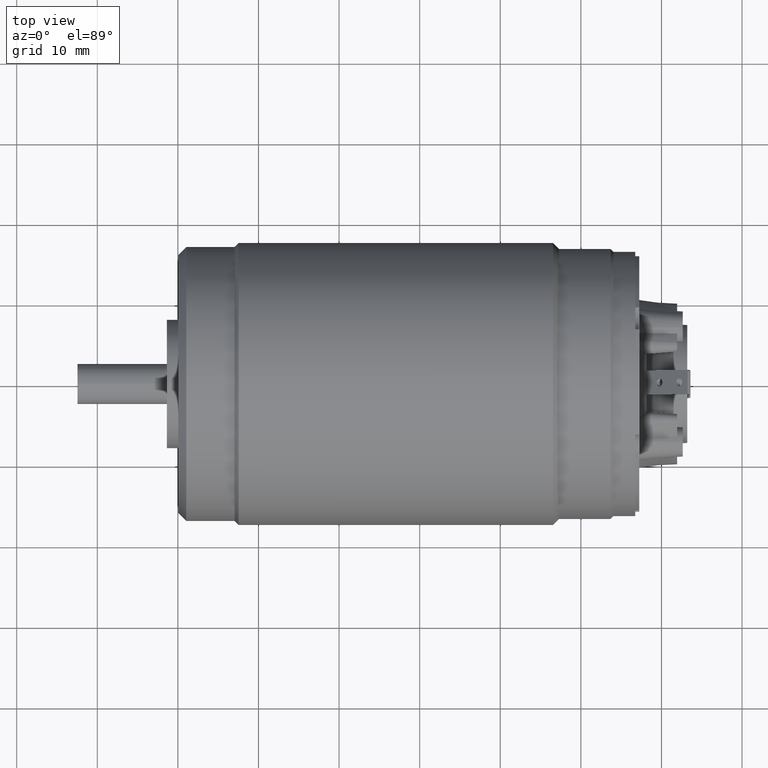
[diagram: clean part render]
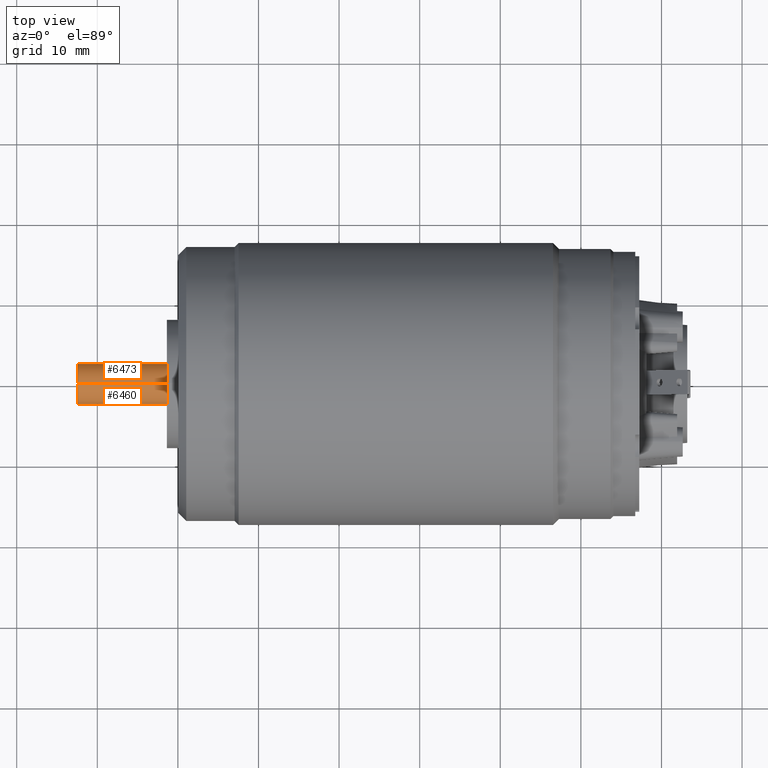
[diagram: same view with one multi-face feature highlighted, each face labeled with its STEP entity id]
A machine part, top view. The highlighted faces form ONE feature: a constant-radius fillet chain: 2 tangent blend faces with common blend radius 2.5 mm. The faces share edges in the B-rep.
Their STEP definitions:
[1] entity #6473 (Cylinder):
#2338=CARTESIAN_POINT('',(-5.136E1,0.E0,0.E0));
#2339=DIRECTION('',(-1.E0,0.E0,0.E0));
#2340=DIRECTION('',(0.E0,0.E0,1.E0));
#2341=AXIS2_PLACEMENT_3D('',#2338,#2339,#2340);
#2348=DIRECTION('',(1.E0,0.E0,0.E0));
#2349=VECTOR('',#2348,1.11E1);
#2350=CARTESIAN_POINT('',(-6.246E1,0.E0,2.5E0));
#2351=LINE('',#2350,#2349);
#2352=CARTESIAN_POINT('',(-6.246E1,0.E0,0.E0));
#2353=DIRECTION('',(-1.E0,0.E0,0.E0));
#2354=DIRECTION('',(0.E0,0.E0,1.E0));
#2355=AXIS2_PLACEMENT_3D('',#2352,#2353,#2354);
#2357=DIRECTION('',(1.E0,0.E0,0.E0));
#2358=VECTOR('',#2357,1.11E1);
#2359=CARTESIAN_POINT('',(-6.246E1,0.E0,-2.5E0));
#2360=LINE('',#2359,#2358);
#3512=CARTESIAN_POINT('',(-6.246E1,0.E0,2.5E0));
#3513=CARTESIAN_POINT('',(-5.136E1,0.E0,2.5E0));
#3514=VERTEX_POINT('',#3512);
#3515=VERTEX_POINT('',#3513);
#3516=CARTESIAN_POINT('',(-6.246E1,0.E0,-2.5E0));
#3517=CARTESIAN_POINT('',(-5.136E1,0.E0,-2.5E0));
#3518=VERTEX_POINT('',#3516);
#3519=VERTEX_POINT('',#3517);
#6461=CARTESIAN_POINT('',(-6.3085E1,0.E0,0.E0));
#6462=DIRECTION('',(1.E0,0.E0,0.E0));
#6463=DIRECTION('',(0.E0,0.E0,1.E0));
#6464=AXIS2_PLACEMENT_3D('',#6461,#6462,#6463);
#6465=CYLINDRICAL_SURFACE('',#6464,2.5E0);
#6466=ORIENTED_EDGE('',*,*,#6451,.F.);
#6468=ORIENTED_EDGE('',*,*,#6467,.T.);
#6469=ORIENTED_EDGE('',*,*,#6454,.T.);
#6470=ORIENTED_EDGE('',*,*,#6441,.F.);
#6471=EDGE_LOOP('',(#6466,#6468,#6469,#6470));
#6472=FACE_OUTER_BOUND('',#6471,.F.);
#6473=ADVANCED_FACE('',(#6472),#6465,.T.);
#2342=CIRCLE('',#2341,2.5E0);
#2356=CIRCLE('',#2355,2.5E0);
#6441=EDGE_CURVE('',#3515,#3519,#2342,.T.);
#6451=EDGE_CURVE('',#3514,#3515,#2351,.T.);
#6454=EDGE_CURVE('',#3518,#3519,#2360,.T.);
#6467=EDGE_CURVE('',#3514,#3518,#2356,.T.);
[2] entity #6460 (Cylinder):
#2333=CARTESIAN_POINT('',(-5.136E1,0.E0,0.E0));
#2334=DIRECTION('',(1.E0,0.E0,0.E0));
#2335=DIRECTION('',(0.E0,0.E0,1.E0));
#2336=AXIS2_PLACEMENT_3D('',#2333,#2334,#2335);
#2343=CARTESIAN_POINT('',(-6.246E1,0.E0,0.E0));
#2344=DIRECTION('',(1.E0,0.E0,0.E0));
#2345=DIRECTION('',(0.E0,0.E0,1.E0));
#2346=AXIS2_PLACEMENT_3D('',#2343,#2344,#2345);
#2348=DIRECTION('',(1.E0,0.E0,0.E0));
#2349=VECTOR('',#2348,1.11E1);
#2350=CARTESIAN_POINT('',(-6.246E1,0.E0,2.5E0));
#2351=LINE('',#2350,#2349);
#2357=DIRECTION('',(1.E0,0.E0,0.E0));
#2358=VECTOR('',#2357,1.11E1);
#2359=CARTESIAN_POINT('',(-6.246E1,0.E0,-2.5E0));
#2360=LINE('',#2359,#2358);
#3512=CARTESIAN_POINT('',(-6.246E1,0.E0,2.5E0));
#3513=CARTESIAN_POINT('',(-5.136E1,0.E0,2.5E0));
#3514=VERTEX_POINT('',#3512);
#3515=VERTEX_POINT('',#3513);
#3516=CARTESIAN_POINT('',(-6.246E1,0.E0,-2.5E0));
#3517=CARTESIAN_POINT('',(-5.136E1,0.E0,-2.5E0));
#3518=VERTEX_POINT('',#3516);
#3519=VERTEX_POINT('',#3517);
#6446=CARTESIAN_POINT('',(-6.3085E1,0.E0,0.E0));
#6447=DIRECTION('',(1.E0,0.E0,0.E0));
#6448=DIRECTION('',(0.E0,0.E0,1.E0));
#6449=AXIS2_PLACEMENT_3D('',#6446,#6447,#6448);
#6450=CYLINDRICAL_SURFACE('',#6449,2.5E0);
#6452=ORIENTED_EDGE('',*,*,#6451,.T.);
#6453=ORIENTED_EDGE('',*,*,#6439,.T.);
#6455=ORIENTED_EDGE('',*,*,#6454,.F.);
#6457=ORIENTED_EDGE('',*,*,#6456,.F.);
#6458=EDGE_LOOP('',(#6452,#6453,#6455,#6457));
#6459=FACE_OUTER_BOUND('',#6458,.F.);
#6460=ADVANCED_FACE('',(#6459),#6450,.T.);
#2337=CIRCLE('',#2336,2.5E0);
#2347=CIRCLE('',#2346,2.5E0);
#6439=EDGE_CURVE('',#3515,#3519,#2337,.T.);
#6451=EDGE_CURVE('',#3514,#3515,#2351,.T.);
#6454=EDGE_CURVE('',#3518,#3519,#2360,.T.);
#6456=EDGE_CURVE('',#3514,#3518,#2347,.T.);